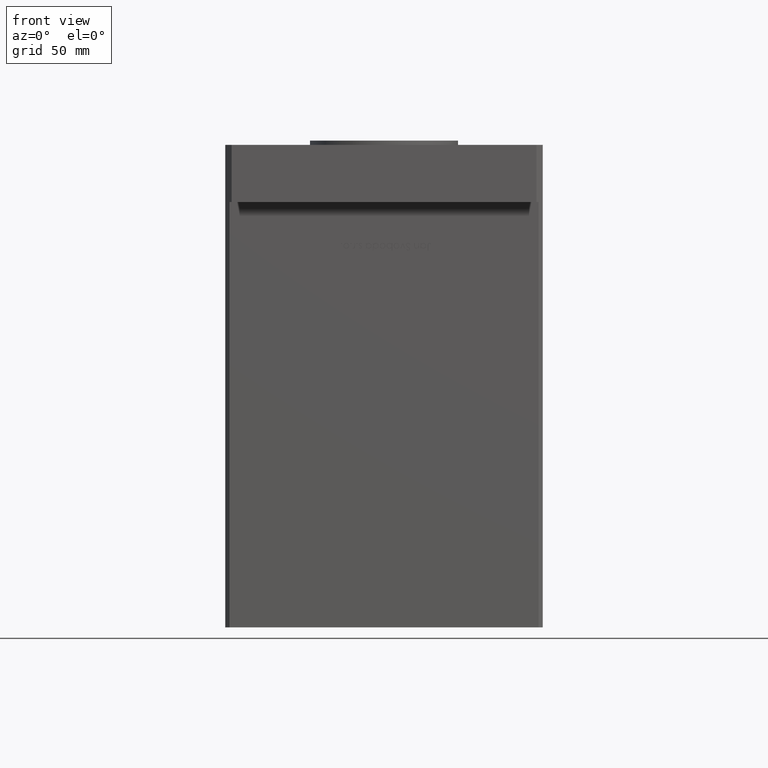
[diagram: clean part render]
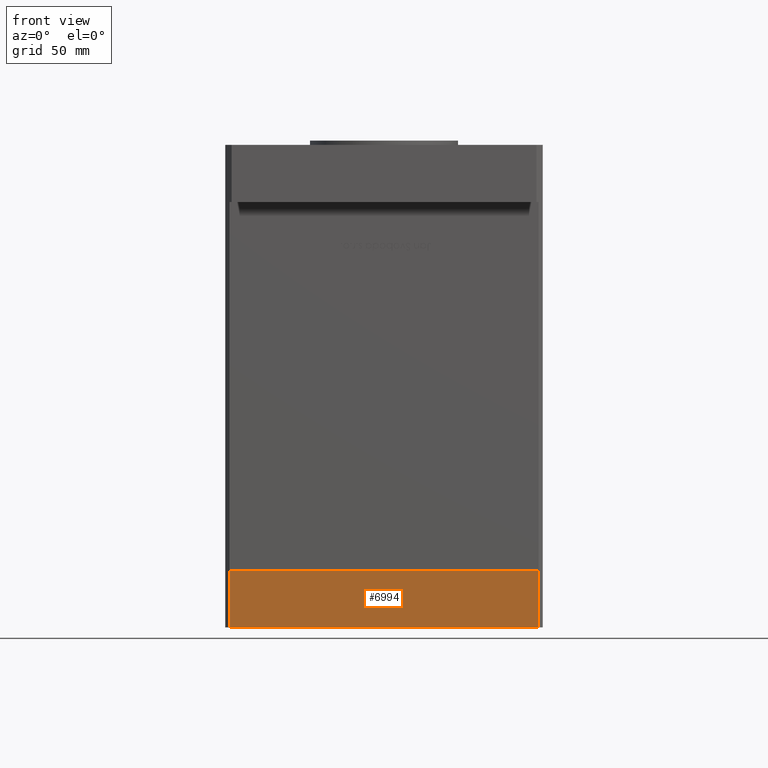
[diagram: same view with one face highlighted and labeled with its STEP entity id]
A machine part, front view. The second image highlights one B-rep face of the part: STEP entity #6994.
In plain terms, the highlighted planar face has unit normal (-0, -1, -0).
Its self-contained STEP definition (entity closure, byte-faithful):
#736 = CARTESIAN_POINT ( 'NONE',  ( 73.00000000000001421, -62.50000000000001421, -27.00000000000000000 ) ) ;
#2598 = CARTESIAN_POINT ( 'NONE',  ( -73.00000000000001421, -62.50000000000002842, 0.000000000000000000 ) ) ;
#4372 = DIRECTION ( 'NONE',  ( 1.000000000000000000, 9.505334114941407284E-17, 0.000000000000000000 ) ) ;
#6717 = ORIENTED_EDGE ( 'NONE', *, *, #35829, .F. ) ;
#6790 = CARTESIAN_POINT ( 'NONE',  ( -73.00000000000001421, -62.50000000000002842, -27.00000000000000000 ) ) ;
#6994 = ADVANCED_FACE ( 'NONE', ( #23642 ), #35838, .T. ) ;
#7289 = EDGE_CURVE ( 'NONE', #14403, #27537, #14639, .T. ) ;
#8301 = VECTOR ( 'NONE', #19513, 1000.000000000000000 ) ;
#8699 = EDGE_LOOP ( 'NONE', ( #6717, #32767, #15629, #15076 ) ) ;
#14403 = VERTEX_POINT ( 'NONE', #6790 ) ;
#14639 = LINE ( 'NONE', #40113, #8301 ) ;
#14886 = EDGE_CURVE ( 'NONE', #27537, #49720, #37584, .T. ) ;
#15076 = ORIENTED_EDGE ( 'NONE', *, *, #14886, .T. ) ;
#15629 = ORIENTED_EDGE ( 'NONE', *, *, #7289, .T. ) ;
#19450 = CARTESIAN_POINT ( 'NONE',  ( -73.00000000000001421, -62.50000000000002842, -27.00000000000000000 ) ) ;
#19513 = DIRECTION ( 'NONE',  ( 1.000000000000000000, 9.505334114941407284E-17, 0.000000000000000000 ) ) ;
#22143 = AXIS2_PLACEMENT_3D ( 'NONE', #27689, #40447, #35298 ) ;
#23435 = CARTESIAN_POINT ( 'NONE',  ( 73.00000000000001421, -62.50000000000001421, 0.000000000000000000 ) ) ;
#23642 = FACE_OUTER_BOUND ( 'NONE', #8699, .T. ) ;
#25237 = VECTOR ( 'NONE', #4372, 1000.000000000000000 ) ;
#27036 = LINE ( 'NONE', #19450, #30969 ) ;
#27537 = VERTEX_POINT ( 'NONE', #736 ) ;
#27689 = CARTESIAN_POINT ( 'NONE',  ( -73.00000000000001421, -62.50000000000002842, -27.00000000000000000 ) ) ;
#28885 = VECTOR ( 'NONE', #49777, 1000.000000000000000 ) ;
#29834 = LINE ( 'NONE', #38497, #25237 ) ;
#30254 = CARTESIAN_POINT ( 'NONE',  ( 73.00000000000001421, -62.50000000000001421, -27.00000000000000000 ) ) ;
#30969 = VECTOR ( 'NONE', #35977, 1000.000000000000000 ) ;
#32767 = ORIENTED_EDGE ( 'NONE', *, *, #46337, .F. ) ;
#35298 = DIRECTION ( 'NONE',  ( 1.000000000000000000, 9.505334114941407284E-17, 0.000000000000000000 ) ) ;
#35829 = EDGE_CURVE ( 'NONE', #47367, #49720, #29834, .T. ) ;
#35838 = PLANE ( 'NONE',  #22143 ) ;
#35977 = DIRECTION ( 'NONE',  ( 0.000000000000000000, 0.000000000000000000, 1.000000000000000000 ) ) ;
#37584 = LINE ( 'NONE', #30254, #28885 ) ;
#38497 = CARTESIAN_POINT ( 'NONE',  ( -73.00000000000001421, -62.50000000000002842, 0.000000000000000000 ) ) ;
#40113 = CARTESIAN_POINT ( 'NONE',  ( -73.00000000000001421, -62.50000000000002842, -27.00000000000000000 ) ) ;
#40447 = DIRECTION ( 'NONE',  ( 9.505334114941407284E-17, -1.000000000000000000, 0.000000000000000000 ) ) ;
#46337 = EDGE_CURVE ( 'NONE', #14403, #47367, #27036, .T. ) ;
#47367 = VERTEX_POINT ( 'NONE', #2598 ) ;
#49720 = VERTEX_POINT ( 'NONE', #23435 ) ;
#49777 = DIRECTION ( 'NONE',  ( 0.000000000000000000, 0.000000000000000000, 1.000000000000000000 ) ) ;